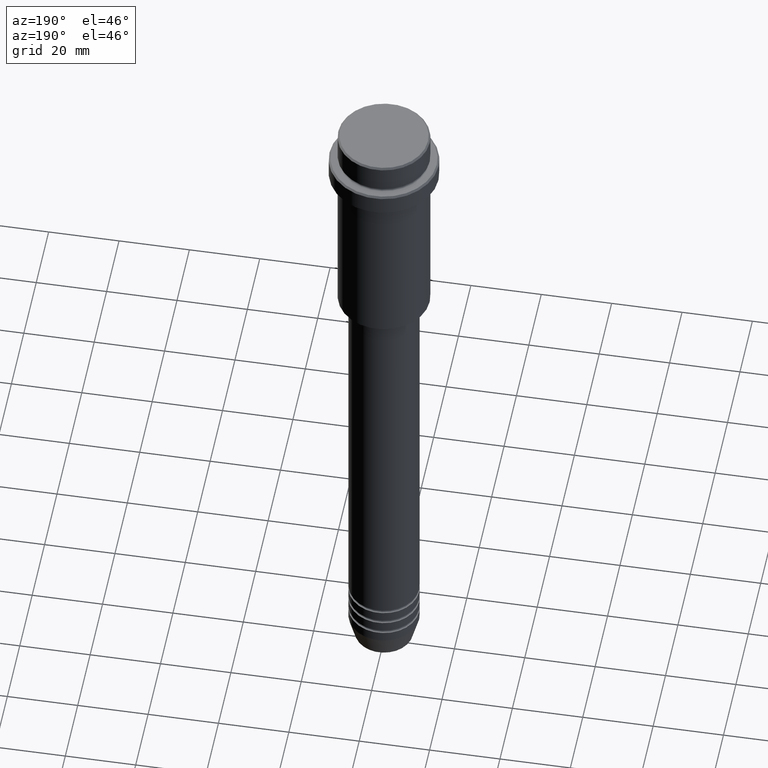
[diagram: clean part render]
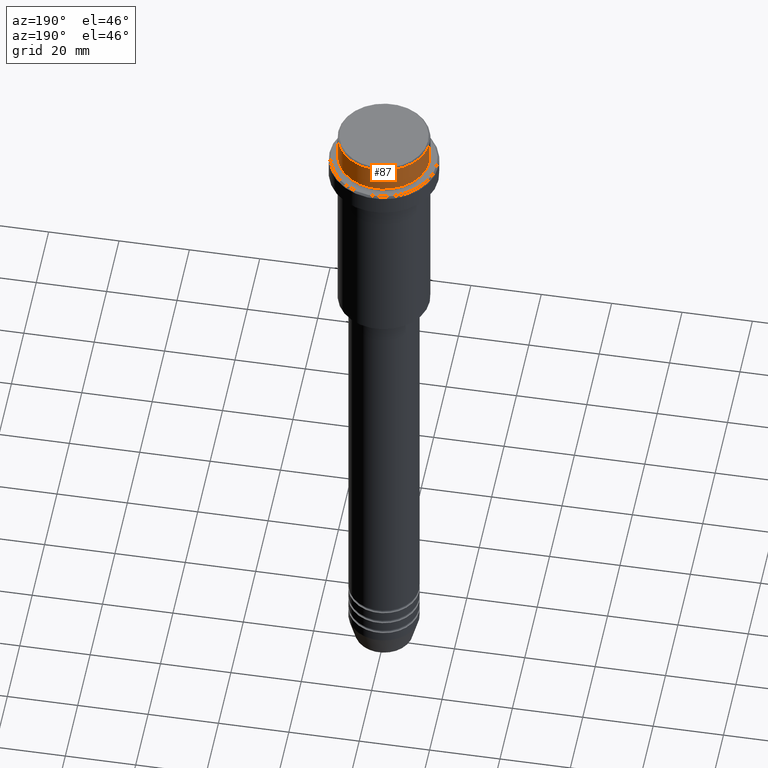
[diagram: same view with one face highlighted and labeled with its STEP entity id]
A machine part, auxiliary view. The second image highlights one B-rep face of the part: STEP entity #87.
In plain terms, the highlighted cylindrical surface (partial cylindrical patch) has radius 13 mm, axis along (-0, -0, 1).
Its self-contained STEP definition (entity closure, byte-faithful):
#21 = DIRECTION ( 'NONE',  ( -0.000000000000000000, -0.000000000000000000, 1.000000000000000000 ) ) ;
#23 = CARTESIAN_POINT ( 'NONE',  ( -12.99999999999999822, 1.592040838891558898E-15, -0.5000000000000037748 ) ) ;
#60 = CARTESIAN_POINT ( 'NONE',  ( 12.99999999999999822, 0.000000000000000000, -0.5000000000000037748 ) ) ;
#73 = CIRCLE ( 'NONE', #596, 12.99999999999999822 ) ;
#87 = ADVANCED_FACE ( 'NONE', ( #996 ), #1209, .T. ) ;
#96 = LINE ( 'NONE', #1279, #864 ) ;
#213 = DIRECTION ( 'NONE',  ( 1.000000000000000000, 0.000000000000000000, 0.000000000000000000 ) ) ;
#242 = LINE ( 'NONE', #1342, #1251 ) ;
#305 = ORIENTED_EDGE ( 'NONE', *, *, #1404, .F. ) ;
#330 = EDGE_CURVE ( 'NONE', #1197, #907, #96, .T. ) ;
#444 = ORIENTED_EDGE ( 'NONE', *, *, #1357, .T. ) ;
#463 = CARTESIAN_POINT ( 'NONE',  ( 12.99999999999999822, 0.000000000000000000, -7.999999999999998224 ) ) ;
#473 = EDGE_LOOP ( 'NONE', ( #1008, #582, #444, #305 ) ) ;
#566 = CARTESIAN_POINT ( 'NONE',  ( 0.000000000000000000, 0.000000000000000000, -0.5000000000000037748 ) ) ;
#582 = ORIENTED_EDGE ( 'NONE', *, *, #330, .T. ) ;
#596 = AXIS2_PLACEMENT_3D ( 'NONE', #566, #690, #886 ) ;
#690 = DIRECTION ( 'NONE',  ( 0.000000000000000000, 0.000000000000000000, -1.000000000000000000 ) ) ;
#691 = DIRECTION ( 'NONE',  ( -0.000000000000000000, -0.000000000000000000, 1.000000000000000000 ) ) ;
#731 = DIRECTION ( 'NONE',  ( -0.000000000000000000, -0.000000000000000000, 1.000000000000000000 ) ) ;
#745 = CIRCLE ( 'NONE', #1162, 12.99999999999999822 ) ;
#754 = CARTESIAN_POINT ( 'NONE',  ( 0.000000000000000000, 0.000000000000000000, 0.000000000000000000 ) ) ;
#783 = DIRECTION ( 'NONE',  ( 1.000000000000000000, 0.000000000000000000, 0.000000000000000000 ) ) ;
#864 = VECTOR ( 'NONE', #731, 1000.000000000000000 ) ;
#886 = DIRECTION ( 'NONE',  ( 1.000000000000000000, 0.000000000000000000, 0.000000000000000000 ) ) ;
#907 = VERTEX_POINT ( 'NONE', #23 ) ;
#929 = CARTESIAN_POINT ( 'NONE',  ( -12.99999999999999822, 1.592040838891558898E-15, -7.999999999999998224 ) ) ;
#977 = EDGE_CURVE ( 'NONE', #1372, #1197, #745, .T. ) ;
#996 = FACE_OUTER_BOUND ( 'NONE', #473, .T. ) ;
#1008 = ORIENTED_EDGE ( 'NONE', *, *, #977, .T. ) ;
#1127 = CARTESIAN_POINT ( 'NONE',  ( 0.000000000000000000, 0.000000000000000000, -7.999999999999998224 ) ) ;
#1128 = VERTEX_POINT ( 'NONE', #60 ) ;
#1162 = AXIS2_PLACEMENT_3D ( 'NONE', #1127, #691, #783 ) ;
#1190 = DIRECTION ( 'NONE',  ( -0.000000000000000000, -0.000000000000000000, 1.000000000000000000 ) ) ;
#1197 = VERTEX_POINT ( 'NONE', #929 ) ;
#1209 = CYLINDRICAL_SURFACE ( 'NONE', #1338, 12.99999999999999822 ) ;
#1251 = VECTOR ( 'NONE', #21, 1000.000000000000000 ) ;
#1279 = CARTESIAN_POINT ( 'NONE',  ( -12.99999999999999822, 1.592040838891558898E-15, 0.000000000000000000 ) ) ;
#1338 = AXIS2_PLACEMENT_3D ( 'NONE', #754, #1190, #213 ) ;
#1342 = CARTESIAN_POINT ( 'NONE',  ( 12.99999999999999822, 0.000000000000000000, 0.000000000000000000 ) ) ;
#1357 = EDGE_CURVE ( 'NONE', #907, #1128, #73, .T. ) ;
#1372 = VERTEX_POINT ( 'NONE', #463 ) ;
#1404 = EDGE_CURVE ( 'NONE', #1372, #1128, #242, .T. ) ;